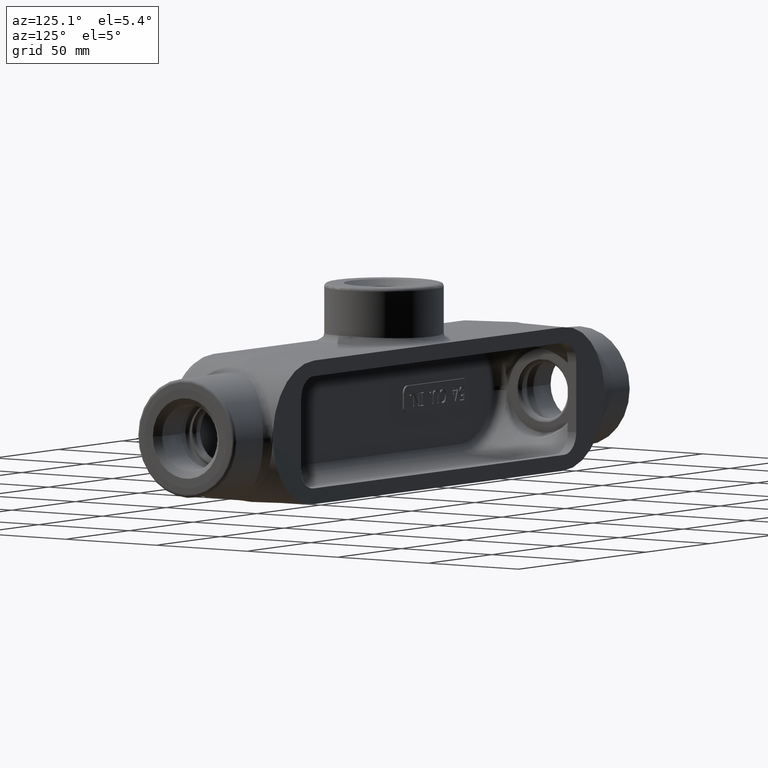
[diagram: clean part render]
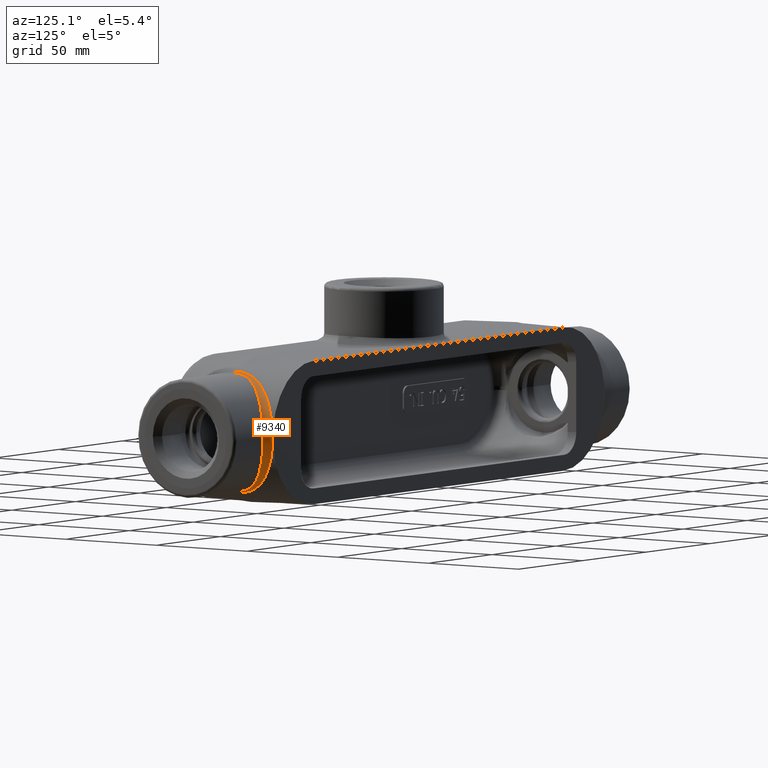
[diagram: same view with one face highlighted and labeled with its STEP entity id]
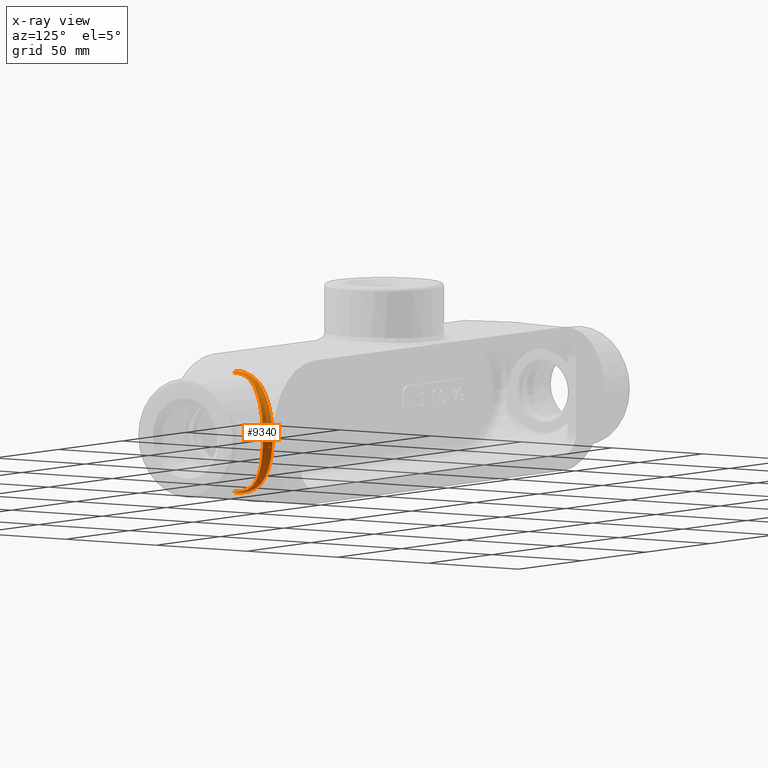
[diagram: x-ray of the same camera — body ghosted, the highlighted face saturated]
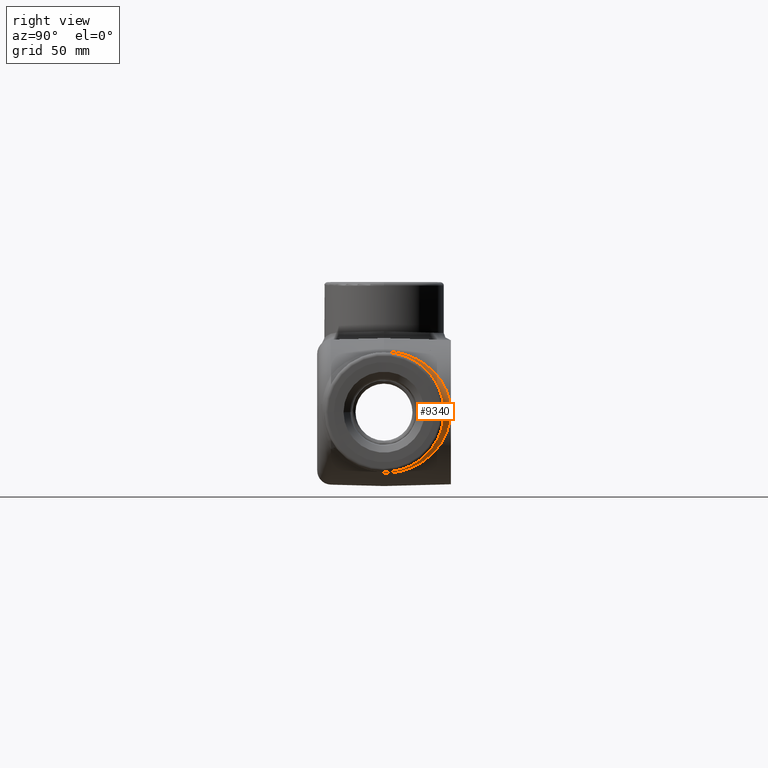
[diagram: same view with one face highlighted and labeled with its STEP entity id]
A machine part, auxiliary view. The second image highlights one B-rep face of the part: STEP entity #9340.
The next image is the same camera in x-ray: the body ghosted, the highlighted face saturated — about 0% of this face is hidden behind the body in this view.
A second angle (right view) of the same face is appended — the face is thin or edge-on in the first view.
In plain terms, the highlighted face is a freeform B-spline surface patch.
Its self-contained STEP definition (entity closure, byte-faithful):
#325=B_SPLINE_SURFACE_WITH_KNOTS('',3,3,((#22286,#22287,#22288,#22289,#22290,
#22291,#22292,#22293,#22294,#22295,#22296,#22297,#22298,#22299,#22300,#22301,
#22302),(#22303,#22304,#22305,#22306,#22307,#22308,#22309,#22310,#22311,
#22312,#22313,#22314,#22315,#22316,#22317,#22318,#22319),(#22320,#22321,
#22322,#22323,#22324,#22325,#22326,#22327,#22328,#22329,#22330,#22331,#22332,
#22333,#22334,#22335,#22336),(#22337,#22338,#22339,#22340,#22341,#22342,
#22343,#22344,#22345,#22346,#22347,#22348,#22349,#22350,#22351,#22352,#22353),
(#22354,#22355,#22356,#22357,#22358,#22359,#22360,#22361,#22362,#22363,
#22364,#22365,#22366,#22367,#22368,#22369,#22370)),.UNSPECIFIED.,.F.,.F.,
 .F.,(4,1,4),(4,1,1,1,1,1,1,1,1,1,1,1,1,1,4),(0.,0.571428571428571,1.),
(4.91144035863075,5.63003901359445,6.34863766855815,7.78583497848556,8.50443363344926,
9.22303228841296,10.1811638283646,10.6602295983404,11.1392953683162,12.0974269082678,
12.8160255632315,13.5346242181952,13.893923545677,14.2532228731589,14.9718215281226),
 .UNSPECIFIED.);
#643=B_SPLINE_CURVE_WITH_KNOTS('',3,(#22373,#22374,#22375,#22376,#22377,
#22378,#22379,#22380,#22381,#22382,#22383,#22384,#22385,#22386,#22387,#22388,
#22389,#22390,#22391,#22392,#22393,#22394,#22395,#22396,#22397,#22398,#22399,
#22400,#22401,#22402,#22403,#22404,#22405,#22406,#22407,#22408,#22409,#22410,
#22411,#22412,#22413,#22414,#22415,#22416,#22417,#22418,#22419,#22420,#22421,
#22422,#22423,#22424,#22425,#22426,#22427,#22428,#22429,#22430,#22431,#22432,
#22433,#22434,#22435,#22436,#22437,#22438,#22439,#22440,#22441,#22442,#22443,
#22444,#22445,#22446,#22447,#22448,#22449,#22450,#22451,#22452,#22453,#22454,
#22455,#22456,#22457,#22458,#22459,#22460,#22461,#22462,#22463,#22464,#22465,
#22466,#22467,#22468,#22469,#22470,#22471,#22472),.UNSPECIFIED.,.F.,.F.,
(4,3,3,3,3,3,3,3,3,3,3,3,3,3,3,3,3,3,3,3,3,3,3,3,3,3,3,3,3,3,3,3,3,4),(-14.9635022112557,
-14.7598637668904,-14.5281345367658,-14.4040880904884,-14.2532650213966,
-13.8939230288535,-13.8213016037004,-13.5346046607861,-12.8159496290064,
-12.3901447406549,-12.0974842157522,-11.5722955824265,-11.3580934727055,
-11.1393450079454,-10.6602168015292,-10.4770035824647,-10.1810925107511,
-9.94163094340918,-9.40625830436864,-9.22297838160275,-8.52516841423092,
-8.50438774417025,-8.00914278028481,-7.78577376647709,-7.4931171463387,
-6.9170994766474,-6.34837531008833,-6.06196028339803,-5.74062757790703,
-5.63014796530246,-5.39213054338923,-5.15594510944332,-5.00663451963438,
-4.91975967549742),.UNSPECIFIED.);
#644=B_SPLINE_CURVE_WITH_KNOTS('',3,(#22474,#22475,#22476,#22477,#22478,
#22479,#22480,#22481,#22482,#22483,#22484,#22485,#22486,#22487,#22488,#22489,
#22490,#22491,#22492),.UNSPECIFIED.,.F.,.F.,(4,3,3,3,3,3,4),(-0.190735192426463,
-0.189933353279227,-0.118684397155727,-0.108950317001185,-0.0953411124737189,
-0.0240575395208752,0.),.UNSPECIFIED.);
#645=B_SPLINE_CURVE_WITH_KNOTS('',3,(#22494,#22495,#22496,#22497,#22498,
#22499,#22500,#22501,#22502,#22503,#22504,#22505,#22506,#22507,#22508,#22509,
#22510),.UNSPECIFIED.,.F.,.F.,(4,1,1,1,1,1,1,1,1,1,1,1,1,1,4),(4.91144035863075,
5.63003901359445,6.34863766855815,7.78583497848556,8.50443363344926,9.22303228841296,
10.1811638283646,10.6602295983404,11.1392953683162,12.0974269082678,12.8160255632315,
13.5346242181952,13.893923545677,14.2532228731589,14.9718215281226),
 .UNSPECIFIED.);
#646=B_SPLINE_CURVE_WITH_KNOTS('',3,(#22511,#22512,#22513,#22514,#22515,
#22516,#22517,#22518,#22519,#22520,#22521,#22522,#22523,#22524,#22525,#22526,
#22527,#22528,#22529),.UNSPECIFIED.,.F.,.F.,(4,3,3,3,3,3,4),(-0.000801847573947484,
0.,0.0712506611153187,0.0809838872689921,0.0945932348027377,0.165877645217105,
0.189935349129489),.UNSPECIFIED.);
#1285=FACE_OUTER_BOUND('',#1825,.T.);
#1825=EDGE_LOOP('',(#7599,#7600,#7601,#7602));
#4264=VERTEX_POINT('',#22371);
#4265=VERTEX_POINT('',#22372);
#4266=VERTEX_POINT('',#22473);
#4267=VERTEX_POINT('',#22493);
#5453=EDGE_CURVE('',#4264,#4265,#643,.T.);
#5454=EDGE_CURVE('',#4266,#4265,#644,.T.);
#5455=EDGE_CURVE('',#4266,#4267,#645,.T.);
#5456=EDGE_CURVE('',#4267,#4264,#646,.T.);
#7599=ORIENTED_EDGE('',*,*,#5453,.T.);
#7600=ORIENTED_EDGE('',*,*,#5454,.F.);
#7601=ORIENTED_EDGE('',*,*,#5455,.T.);
#7602=ORIENTED_EDGE('',*,*,#5456,.T.);
#9340=ADVANCED_FACE('',(#1285),#325,.T.);
#22286=CARTESIAN_POINT('Ctrl Pts',(4.58334119712012,-0.0032721185384872,
1.08427759221372));
#22287=CARTESIAN_POINT('Ctrl Pts',(4.57922377865851,0.0909315114062012,
1.08410046361489));
#22288=CARTESIAN_POINT('Ctrl Pts',(4.60337864706897,0.280068744512831,1.06245188632261));
#22289=CARTESIAN_POINT('Ctrl Pts',(4.73564930314307,0.609223314244802,0.950173399179749));
#22290=CARTESIAN_POINT('Ctrl Pts',(4.90387640616855,0.872955728902057,0.75886330629082));
#22291=CARTESIAN_POINT('Ctrl Pts',(5.03759261708899,1.06549819512084,0.492444668960591));
#22292=CARTESIAN_POINT('Ctrl Pts',(5.1160727244688,1.17213008812285,0.231640562715458));
#22293=CARTESIAN_POINT('Ctrl Pts',(5.13360874109075,1.1957022290474,-0.029955059579667));
#22294=CARTESIAN_POINT('Ctrl Pts',(5.10379083368127,1.15556308573767,-0.255494439096398));
#22295=CARTESIAN_POINT('Ctrl Pts',(5.04813667510343,1.0794831733072,-0.46786142430569));
#22296=CARTESIAN_POINT('Ctrl Pts',(4.94992142499817,0.941521728045024,-0.674463206432715));
#22297=CARTESIAN_POINT('Ctrl Pts',(4.82022449334073,0.740537150380028,-0.85432323791113));
#22298=CARTESIAN_POINT('Ctrl Pts',(4.72173018423274,0.562877335960806,-0.957777068657714));
#22299=CARTESIAN_POINT('Ctrl Pts',(4.65319484087867,0.403574887591187,-1.0202614144062));
#22300=CARTESIAN_POINT('Ctrl Pts',(4.59716764432629,0.232583163191695,-1.06793727534058));
#22301=CARTESIAN_POINT('Ctrl Pts',(4.57922377865851,0.09093151140619,-1.08410046361489));
#22302=CARTESIAN_POINT('Ctrl Pts',(4.58334119712012,-0.00327211853849864,
-1.08427759221372));
#22303=CARTESIAN_POINT('Ctrl Pts',(4.59510988990981,-0.00272530221604395,
1.0762310999072));
#22304=CARTESIAN_POINT('Ctrl Pts',(4.59098411838693,0.0894730370830086,
1.07616706009206));
#22305=CARTESIAN_POINT('Ctrl Pts',(4.61532097536309,0.274570898965119,1.05410086571365));
#22306=CARTESIAN_POINT('Ctrl Pts',(4.74803152811279,0.596010402527673,0.939296123000301));
#22307=CARTESIAN_POINT('Ctrl Pts',(4.91462678832143,0.851647445648187,0.744635991574196));
#22308=CARTESIAN_POINT('Ctrl Pts',(5.04365983291766,1.03570213798442,0.479210528509358));
#22309=CARTESIAN_POINT('Ctrl Pts',(5.11776014745851,1.13624521544442,0.223595585569314));
#22310=CARTESIAN_POINT('Ctrl Pts',(5.13393272598284,1.15815831580099,-0.0287771464213223));
#22311=CARTESIAN_POINT('Ctrl Pts',(5.10615761323874,1.12062376020469,-0.247315892874572));
#22312=CARTESIAN_POINT('Ctrl Pts',(5.05366814508935,1.04891812712066,-0.454886366608536));
#22313=CARTESIAN_POINT('Ctrl Pts',(4.95926343900702,0.917399073994786,-0.660269182388275));
#22314=CARTESIAN_POINT('Ctrl Pts',(4.83182442451356,0.723302756460012,-0.841820255711729));
#22315=CARTESIAN_POINT('Ctrl Pts',(4.73387069246791,0.550586604223256,-0.947130727525529));
#22316=CARTESIAN_POINT('Ctrl Pts',(4.66529968076077,0.395178730588682,-1.01095587397582));
#22317=CARTESIAN_POINT('Ctrl Pts',(4.6090747892274,0.2281077220001,-1.05970590825306));
#22318=CARTESIAN_POINT('Ctrl Pts',(4.59098411838693,0.0894730370829976,
-1.07616706009206));
#22319=CARTESIAN_POINT('Ctrl Pts',(4.59510988990981,-0.00272530221605515,
-1.07623109990721));
#22320=CARTESIAN_POINT('Ctrl Pts',(4.61813377068113,-0.00165552887445591,
1.06571952406177));
#22321=CARTESIAN_POINT('Ctrl Pts',(4.61393329768114,0.0870325037932346,
1.06578392689874));
#22322=CARTESIAN_POINT('Ctrl Pts',(4.63902570127888,0.265071759325962,1.04348765051369));
#22323=CARTESIAN_POINT('Ctrl Pts',(4.77552260697045,0.573140949660549,0.926995816691051));
#22324=CARTESIAN_POINT('Ctrl Pts',(4.9459617012522,0.814817845507038,0.729833216144755));
#22325=CARTESIAN_POINT('Ctrl Pts',(5.07622370383082,0.984476423670471,0.465722233929959));
#22326=CARTESIAN_POINT('Ctrl Pts',(5.14996188320713,1.07483685691766,0.215429486248822));
#22327=CARTESIAN_POINT('Ctrl Pts',(5.16575877890403,1.09399009516173,-0.0275820383935726));
#22328=CARTESIAN_POINT('Ctrl Pts',(5.13841000444559,1.06079496476726,-0.238999692179567));
#22329=CARTESIAN_POINT('Ctrl Pts',(5.08622895929238,0.996410549456905,-0.441677013618925));
#22330=CARTESIAN_POINT('Ctrl Pts',(4.99117175237363,0.875796431830211,-0.645639444676168));
#22331=CARTESIAN_POINT('Ctrl Pts',(4.86125523403253,0.693500363387762,-0.828312665453686));
#22332=CARTESIAN_POINT('Ctrl Pts',(4.76087487323506,0.529315492491935,-0.934955044984162));
#22333=CARTESIAN_POINT('Ctrl Pts',(4.69042808348776,0.380656805221863,-0.999703652878842));
#22334=CARTESIAN_POINT('Ctrl Pts',(4.63259245553327,0.22039633229725,-1.04916386714478));
#22335=CARTESIAN_POINT('Ctrl Pts',(4.61393329768114,0.0870325037932242,
-1.06578392689874));
#22336=CARTESIAN_POINT('Ctrl Pts',(4.61813377068114,-0.0016555288744667,
-1.06571952406177));
#22337=CARTESIAN_POINT('Ctrl Pts',(4.64307568640707,-0.00049663664439485,
1.0625));
#22338=CARTESIAN_POINT('Ctrl Pts',(4.63875155647826,0.0850341487392943,
1.06253941781134));
#22339=CARTESIAN_POINT('Ctrl Pts',(4.66498216265521,0.256753267688694,1.04111114446536));
#22340=CARTESIAN_POINT('Ctrl Pts',(4.80776527867454,0.554669274139299,0.9287892197065));
#22341=CARTESIAN_POINT('Ctrl Pts',(4.98839711912291,0.790787648661295,0.737681476332227));
#22342=CARTESIAN_POINT('Ctrl Pts',(5.13049537399224,0.96005640225132,0.475690941172327));
#22343=CARTESIAN_POINT('Ctrl Pts',(5.21310744405009,1.05225116198606,0.222393678608506));
#22344=CARTESIAN_POINT('Ctrl Pts',(5.23136710166164,1.07229319758331,-0.0286554512517267));
#22345=CARTESIAN_POINT('Ctrl Pts',(5.20017528693533,1.03792656967267,-0.245815912073233));
#22346=CARTESIAN_POINT('Ctrl Pts',(5.14162382368836,0.972180130310128,-0.451643131234579));
#22347=CARTESIAN_POINT('Ctrl Pts',(5.03743451314077,0.851312944985409,-0.654479334943704));
#22348=CARTESIAN_POINT('Ctrl Pts',(4.89858707622401,0.672250529898216,-0.833076427009984));
#22349=CARTESIAN_POINT('Ctrl Pts',(4.79265471449333,0.51249736090546,-0.93640484431237));
#22350=CARTESIAN_POINT('Ctrl Pts',(4.71875534466294,0.36853363550689,-0.9989003275361));
#22351=CARTESIAN_POINT('Ctrl Pts',(4.65824411179576,0.213652011558726,-1.04655115288669));
#22352=CARTESIAN_POINT('Ctrl Pts',(4.63875155647826,0.0850341487392842,
-1.06253941781134));
#22353=CARTESIAN_POINT('Ctrl Pts',(4.64307568640707,-0.000496636644405267,
-1.0625));
#22354=CARTESIAN_POINT('Ctrl Pts',(4.65376440189719,-2.72262800668565E-15,
1.0625));
#22355=CARTESIAN_POINT('Ctrl Pts',(4.64938735820953,0.0842874583715605,
1.0625));
#22356=CARTESIAN_POINT('Ctrl Pts',(4.67610760863028,0.253515509045914,1.04163516299594));
#22357=CARTESIAN_POINT('Ctrl Pts',(4.82157953766826,0.548022229332412,0.932122026817487));
#22358=CARTESIAN_POINT('Ctrl Pts',(5.00658097008434,0.783993337183643,0.744813136044664));
#22359=CARTESIAN_POINT('Ctrl Pts',(5.15372977774369,0.956268175379392,0.483483436082087));
#22360=CARTESIAN_POINT('Ctrl Pts',(5.2401175213131,1.05167565859172,0.227476565827446));
#22361=CARTESIAN_POINT('Ctrl Pts',(5.25942702873574,1.07276652152421,-0.0294204217345036));
#22362=CARTESIAN_POINT('Ctrl Pts',(5.22659846996442,1.03685255119445,-0.250882154959526));
#22363=CARTESIAN_POINT('Ctrl Pts',(5.16533469962399,0.968781050598771,-0.459359054306877));
#22364=CARTESIAN_POINT('Ctrl Pts',(5.05724865264402,0.845341862732612,-0.662044796028023));
#22365=CARTESIAN_POINT('Ctrl Pts',(4.91458330556876,0.665513556400774,-0.838276222849233));
#22366=CARTESIAN_POINT('Ctrl Pts',(4.80627284751055,0.506554775078312,-0.939480001218933));
#22367=CARTESIAN_POINT('Ctrl Pts',(4.73089489630455,0.364021005484443,-1.00048343325776));
#22368=CARTESIAN_POINT('Ctrl Pts',(4.66923817950861,0.211028409969107,-1.04692312429613));
#22369=CARTESIAN_POINT('Ctrl Pts',(4.64938735820953,0.0842874583715507,
-1.0625));
#22370=CARTESIAN_POINT('Ctrl Pts',(4.6537644018972,-1.29930105388664E-14,
-1.0625));
#22371=CARTESIAN_POINT('',(4.58320420662205,6.49761919248649E-15,-1.08426732313855));
#22372=CARTESIAN_POINT('',(4.58320420662205,-6.840862835079E-14,1.08426732313855));
#22373=CARTESIAN_POINT('Ctrl Pts',(4.58320464154913,1.80512692016244E-8,
-1.08426718071065));
#22374=CARTESIAN_POINT('Ctrl Pts',(4.58214300271726,0.0267006462776859,
-1.08414749485883));
#22375=CARTESIAN_POINT('Ctrl Pts',(4.58236840117294,0.0534534421939352,
-1.08317677094739));
#22376=CARTESIAN_POINT('Ctrl Pts',(4.58376027006746,0.0800568799639217,
-1.08139855762818));
#22377=CARTESIAN_POINT('Ctrl Pts',(4.58534413950021,0.110330113352251,-1.07937504971569));
#22378=CARTESIAN_POINT('Ctrl Pts',(4.58843674574488,0.140419355199532,-1.07630674283576));
#22379=CARTESIAN_POINT('Ctrl Pts',(4.5928506545047,0.170109672765153,-1.07226227086282));
#22380=CARTESIAN_POINT('Ctrl Pts',(4.59521345394763,0.186003129023912,-1.07009723378467));
#22381=CARTESIAN_POINT('Ctrl Pts',(4.59795474549663,0.201783062809426,-1.06765256754693));
#22382=CARTESIAN_POINT('Ctrl Pts',(4.60104901740327,0.217430148413235,-1.06493608991532));
#22383=CARTESIAN_POINT('Ctrl Pts',(4.6048112177691,0.236454808481544,-1.06163323436553));
#22384=CARTESIAN_POINT('Ctrl Pts',(4.60909455250084,0.25527798733311,-1.057929193345));
#22385=CARTESIAN_POINT('Ctrl Pts',(4.61384961365844,0.273841332237581,-1.05384123150404));
#22386=CARTESIAN_POINT('Ctrl Pts',(4.62517873699034,0.318069243699701,-1.044101498967));
#22387=CARTESIAN_POINT('Ctrl Pts',(4.63918613769216,0.360821907653218,-1.03218206353583));
#22388=CARTESIAN_POINT('Ctrl Pts',(4.65475835922888,0.402113728087453,-1.01841035380444));
#22389=CARTESIAN_POINT('Ctrl Pts',(4.65790543623147,0.410458622114117,-1.01562715226317));
#22390=CARTESIAN_POINT('Ctrl Pts',(4.66111640245206,0.418743863036565,-1.01276831626751));
#22391=CARTESIAN_POINT('Ctrl Pts',(4.66438536829091,0.426969598251432,-1.00983521179911));
#22392=CARTESIAN_POINT('Ctrl Pts',(4.67729068528949,0.45944339141029,-0.998255817941653));
#22393=CARTESIAN_POINT('Ctrl Pts',(4.69109914017338,0.490987930113965,-0.985519651708176));
#22394=CARTESIAN_POINT('Ctrl Pts',(4.70545137860355,0.521620487290173,-0.971708243462108));
#22395=CARTESIAN_POINT('Ctrl Pts',(4.74142772442817,0.598406242754412,-0.937087581200745));
#22396=CARTESIAN_POINT('Ctrl Pts',(4.780820952728,0.669462767946906,-0.895711974195401));
#22397=CARTESIAN_POINT('Ctrl Pts',(4.81998104488349,0.735151546460561,-0.848034047678604));
#22398=CARTESIAN_POINT('Ctrl Pts',(4.84318349658944,0.774072310615905,-0.819784757992233));
#22399=CARTESIAN_POINT('Ctrl Pts',(4.86630415918059,0.811108420449382,-0.789322650508796));
#22400=CARTESIAN_POINT('Ctrl Pts',(4.88884557698758,0.846105774295076,-0.756619794930118));
#22401=CARTESIAN_POINT('Ctrl Pts',(4.90433854888131,0.870159852176478,-0.734142751708449));
#22402=CARTESIAN_POINT('Ctrl Pts',(4.9195455701964,0.893231947328137,-0.710625109428242));
#22403=CARTESIAN_POINT('Ctrl Pts',(4.93431057480739,0.915282575547273,-0.686054535741962));
#22404=CARTESIAN_POINT('Ctrl Pts',(4.9608068458548,0.954853130210328,-0.641961858676563));
#22405=CARTESIAN_POINT('Ctrl Pts',(4.98588090950552,0.991136166018571,-0.594480147796517));
#22406=CARTESIAN_POINT('Ctrl Pts',(5.00859700321096,1.02341374951253,-0.543847337995525));
#22407=CARTESIAN_POINT('Ctrl Pts',(5.01786193182434,1.03657840320527,-0.52319636805394));
#22408=CARTESIAN_POINT('Ctrl Pts',(5.02673441460608,1.04907637925482,-0.50202087038038));
#22409=CARTESIAN_POINT('Ctrl Pts',(5.03514976913914,1.06085710663227,-0.480335615585944));
#22410=CARTESIAN_POINT('Ctrl Pts',(5.043743736243,1.07288787528778,-0.458190099837316));
#22411=CARTESIAN_POINT('Ctrl Pts',(5.05185445823665,1.08415979363251,-0.43552961345739));
#22412=CARTESIAN_POINT('Ctrl Pts',(5.05941356252244,1.09461910549861,-0.412374566663897));
#22413=CARTESIAN_POINT('Ctrl Pts',(5.07597038765276,1.11752830095399,-0.361657703110972));
#22414=CARTESIAN_POINT('Ctrl Pts',(5.08988124575164,1.13653961306439,-0.308568408624995));
#22415=CARTESIAN_POINT('Ctrl Pts',(5.10056309308316,1.15104572744624,-0.253842253627399));
#22416=CARTESIAN_POINT('Ctrl Pts',(5.10464771095569,1.15659270188111,-0.232915589553228));
#22417=CARTESIAN_POINT('Ctrl Pts',(5.10826011861739,1.16148082950089,-0.211749556587692));
#22418=CARTESIAN_POINT('Ctrl Pts',(5.11136960845897,1.16567664548616,-0.190402961444874));
#22419=CARTESIAN_POINT('Ctrl Pts',(5.11639180323403,1.172453385785,-0.155925679301141));
#22420=CARTESIAN_POINT('Ctrl Pts',(5.12010467646268,1.17744790663361,-0.120952985850737));
#22421=CARTESIAN_POINT('Ctrl Pts',(5.12237254800698,1.18050854732395,-0.0857521480973296));
#22422=CARTESIAN_POINT('Ctrl Pts',(5.1242077888156,1.18298532459536,-0.0572664015811026));
#22423=CARTESIAN_POINT('Ctrl Pts',(5.1250968053297,1.18419575971304,-0.0286313707455423));
#22424=CARTESIAN_POINT('Ctrl Pts',(5.12506536506363,1.18416876386877,-2.06812236994232E-8));
#22425=CARTESIAN_POINT('Ctrl Pts',(5.12499507295621,1.18410840831131,0.0640120945545403));
#22426=CARTESIAN_POINT('Ctrl Pts',(5.12032939606722,1.17780891066995,0.127987961376632));
#22427=CARTESIAN_POINT('Ctrl Pts',(5.11135990297076,1.16562078321361,0.190391519875162));
#22428=CARTESIAN_POINT('Ctrl Pts',(5.10828927910602,1.16144828933559,0.211754806953906));
#22429=CARTESIAN_POINT('Ctrl Pts',(5.10471354817503,1.15659052381838,0.232935281821926));
#22430=CARTESIAN_POINT('Ctrl Pts',(5.10064408879458,1.15106169556209,0.253867812206252));
#22431=CARTESIAN_POINT('Ctrl Pts',(5.08515025141925,1.13001153683817,0.333565185077551));
#22432=CARTESIAN_POINT('Ctrl Pts',(5.06249741050572,1.09923111618551,0.409666313138402));
#22433=CARTESIAN_POINT('Ctrl Pts',(5.0351152298447,1.06084439764658,0.480315875373694));
#22434=CARTESIAN_POINT('Ctrl Pts',(5.03429979285116,1.05970124726185,0.482419808122422));
#22435=CARTESIAN_POINT('Ctrl Pts',(5.03348014518241,1.0585511989399,0.484518964146276));
#22436=CARTESIAN_POINT('Ctrl Pts',(5.03265635181182,1.05739431191133,0.486613290977817));
#22437=CARTESIAN_POINT('Ctrl Pts',(5.01302370681657,1.02982337829793,0.536525291554427));
#22438=CARTESIAN_POINT('Ctrl Pts',(4.99103570620754,0.998366872702571,0.583691418432376));
#22439=CARTESIAN_POINT('Ctrl Pts',(4.96738909035722,0.963794726176908,0.627924830807146));
#22440=CARTESIAN_POINT('Ctrl Pts',(4.9567238203443,0.948201743233543,0.64787530869184));
#22441=CARTESIAN_POINT('Ctrl Pts',(4.9457165724119,0.931968259446786,0.667238280386408));
#22442=CARTESIAN_POINT('Ctrl Pts',(4.93443296766155,0.915150254820948,0.685994613619311));
#22443=CARTESIAN_POINT('Ctrl Pts',(4.91964926255885,0.893115415219127,0.710569038677462));
#22444=CARTESIAN_POINT('Ctrl Pts',(4.90439112566927,0.870076916792728,0.734101918734828));
#22445=CARTESIAN_POINT('Ctrl Pts',(4.88886778881386,0.84603989189811,0.756570763391293));
#22446=CARTESIAN_POINT('Ctrl Pts',(4.85831417852116,0.798729323425196,0.800794781059344));
#22447=CARTESIAN_POINT('Ctrl Pts',(4.82666326604928,0.74782735908361,0.840981409821681));
#22448=CARTESIAN_POINT('Ctrl Pts',(4.79543298630478,0.693328718473406,0.877030695374807));
#22449=CARTESIAN_POINT('Ctrl Pts',(4.76459814259483,0.639520136566097,0.912623526914575));
#22450=CARTESIAN_POINT('Ctrl Pts',(4.73417407714705,0.582205669075813,0.944181810222875));
#22451=CARTESIAN_POINT('Ctrl Pts',(4.70563759740855,0.521427121973871,0.971606307345449));
#22452=CARTESIAN_POINT('Ctrl Pts',(4.69126634841557,0.490818453986853,0.985417551068137));
#22453=CARTESIAN_POINT('Ctrl Pts',(4.67737391662459,0.459331945398437,0.998180506152187));
#22454=CARTESIAN_POINT('Ctrl Pts',(4.66443909951363,0.426918429840989,1.00976385270368));
#22455=CARTESIAN_POINT('Ctrl Pts',(4.64992736168575,0.390553289474901,1.02275935831329));
#22456=CARTESIAN_POINT('Ctrl Pts',(4.63656139308654,0.353023486352573,1.03431686457804));
#22457=CARTESIAN_POINT('Ctrl Pts',(4.62506745529915,0.314291163710277,1.04420627805918));
#22458=CARTESIAN_POINT('Ctrl Pts',(4.6211156453142,0.300974336858628,1.0476064254815));
#22459=CARTESIAN_POINT('Ctrl Pts',(4.61738498493441,0.287515699391745,1.05080962838584));
#22460=CARTESIAN_POINT('Ctrl Pts',(4.61390436812725,0.273914796932566,1.05380730122577));
#22461=CARTESIAN_POINT('Ctrl Pts',(4.60640572272492,0.244612994883222,1.06026549151338));
#22462=CARTESIAN_POINT('Ctrl Pts',(4.60006839909586,0.214650351817679,1.06576917923453));
#22463=CARTESIAN_POINT('Ctrl Pts',(4.59510811165514,0.184291794211032,1.07023914979735));
#22464=CARTESIAN_POINT('Ctrl Pts',(4.59018600287727,0.154166902324287,1.07467471560013));
#22465=CARTESIAN_POINT('Ctrl Pts',(4.58659464336187,0.123594550151355,1.0781119481005));
#22466=CARTESIAN_POINT('Ctrl Pts',(4.58454124848472,0.0927985615221073,
1.08047546023885));
#22467=CARTESIAN_POINT('Ctrl Pts',(4.58324314302963,0.0733300991823194,
1.08196961415639));
#22468=CARTESIAN_POINT('Ctrl Pts',(4.58255982630558,0.0537687183423045,
1.08303467818419));
#22469=CARTESIAN_POINT('Ctrl Pts',(4.58254423329611,0.0341856401905734,
1.08365087733839));
#22470=CARTESIAN_POINT('Ctrl Pts',(4.58253516066256,0.0227914258596903,
1.08400940653278));
#22471=CARTESIAN_POINT('Ctrl Pts',(4.58275211006068,0.0113908726711998,
1.0842159694939));
#22472=CARTESIAN_POINT('Ctrl Pts',(4.58320468928743,2.00219275893997E-8,
1.08426716151409));
#22473=CARTESIAN_POINT('',(4.65376440189719,-2.78989976352963E-15,1.0625));
#22474=CARTESIAN_POINT('Ctrl Pts',(4.65376440189719,-2.7226484955456E-15,
1.0625));
#22475=CARTESIAN_POINT('Ctrl Pts',(4.65365917255681,-2.73333021163249E-15,
1.0625));
#22476=CARTESIAN_POINT('Ctrl Pts',(4.65355394319675,-5.66142407538612E-12,
1.06250013312186));
#22477=CARTESIAN_POINT('Ctrl Pts',(4.65344871406922,-1.42549461817909E-11,
1.06250039932777));
#22478=CARTESIAN_POINT('Ctrl Pts',(4.64409837801191,-7.77841269930123E-10,
1.06252405356536));
#22479=CARTESIAN_POINT('Ctrl Pts',(4.63478857385947,-2.51105038179707E-7,
1.06359401965148));
#22480=CARTESIAN_POINT('Ctrl Pts',(4.62569481914813,-1.39579737260795E-7,
1.06568434558849));
#22481=CARTESIAN_POINT('Ctrl Pts',(4.62445242428255,-1.24343075876979E-7,
1.06596992731947));
#22482=CARTESIAN_POINT('Ctrl Pts',(4.62321407120037,-1.06717531562816E-7,
1.06627463315072));
#22483=CARTESIAN_POINT('Ctrl Pts',(4.62198022252178,-8.89466942645939E-8,
1.0665984710911));
#22484=CARTESIAN_POINT('Ctrl Pts',(4.62025518032402,-6.41013102551251E-8,
1.06705122848517));
#22485=CARTESIAN_POINT('Ctrl Pts',(4.61853894136672,-3.88598433696582E-8,
1.06754138069531));
#22486=CARTESIAN_POINT('Ctrl Pts',(4.61683264855692,-2.88562417123054E-8,
1.06806852676693));
#22487=CARTESIAN_POINT('Ctrl Pts',(4.60789526740872,2.3541565012081E-8,
1.07082966209834));
#22488=CARTESIAN_POINT('Ctrl Pts',(4.5993035305878,-1.04341539606854E-7,
1.07457884964849));
#22489=CARTESIAN_POINT('Ctrl Pts',(4.59121497291736,-1.3151916554709E-7,
1.07923866415874));
#22490=CARTESIAN_POINT('Ctrl Pts',(4.5884851603145,-1.40691360248571E-7,
1.08081130799654));
#22491=CARTESIAN_POINT('Ctrl Pts',(4.5858128222175,-1.47338653248133E-7,
1.08248807898544));
#22492=CARTESIAN_POINT('Ctrl Pts',(4.58320469628832,-1.56181121759372E-7,
1.08426716230595));
#22493=CARTESIAN_POINT('',(4.6537644018972,-1.23971261952484E-14,-1.0625));
#22494=CARTESIAN_POINT('Ctrl Pts',(4.65376440189719,-2.72262800668565E-15,
1.0625));
#22495=CARTESIAN_POINT('Ctrl Pts',(4.64938735820953,0.0842874583715605,
1.0625));
#22496=CARTESIAN_POINT('Ctrl Pts',(4.67610760863028,0.253515509045914,1.04163516299594));
#22497=CARTESIAN_POINT('Ctrl Pts',(4.82157953766826,0.548022229332412,0.932122026817487));
#22498=CARTESIAN_POINT('Ctrl Pts',(5.00658097008434,0.783993337183643,0.744813136044664));
#22499=CARTESIAN_POINT('Ctrl Pts',(5.15372977774369,0.956268175379392,0.483483436082087));
#22500=CARTESIAN_POINT('Ctrl Pts',(5.2401175213131,1.05167565859172,0.227476565827446));
#22501=CARTESIAN_POINT('Ctrl Pts',(5.25942702873574,1.07276652152421,-0.0294204217345036));
#22502=CARTESIAN_POINT('Ctrl Pts',(5.22659846996442,1.03685255119445,-0.250882154959526));
#22503=CARTESIAN_POINT('Ctrl Pts',(5.16533469962399,0.968781050598771,-0.459359054306877));
#22504=CARTESIAN_POINT('Ctrl Pts',(5.05724865264402,0.845341862732612,-0.662044796028023));
#22505=CARTESIAN_POINT('Ctrl Pts',(4.91458330556876,0.665513556400774,-0.838276222849233));
#22506=CARTESIAN_POINT('Ctrl Pts',(4.80627284751055,0.506554775078312,-0.939480001218933));
#22507=CARTESIAN_POINT('Ctrl Pts',(4.73089489630455,0.364021005484443,-1.00048343325776));
#22508=CARTESIAN_POINT('Ctrl Pts',(4.66923817950861,0.211028409969107,-1.04692312429613));
#22509=CARTESIAN_POINT('Ctrl Pts',(4.64938735820953,0.0842874583715507,
-1.0625));
#22510=CARTESIAN_POINT('Ctrl Pts',(4.6537644018972,-1.29930105388664E-14,
-1.0625));
#22511=CARTESIAN_POINT('Ctrl Pts',(4.6537644018972,-1.30004514098392E-14,
-1.0625));
#22512=CARTESIAN_POINT('Ctrl Pts',(4.65365917255678,-1.30057102559661E-14,
-1.0625));
#22513=CARTESIAN_POINT('Ctrl Pts',(4.65355394319654,-5.18085320927938E-12,
-1.06250013312202));
#22514=CARTESIAN_POINT('Ctrl Pts',(4.65344871406813,-1.47999854559211E-11,
-1.06250039932826));
#22515=CARTESIAN_POINT('Ctrl Pts',(4.64409825244504,-8.69518433879731E-10,
-1.06252405391192));
#22516=CARTESIAN_POINT('Ctrl Pts',(4.63478832058219,-2.54215876120255E-7,
-1.06359404981389));
#22517=CARTESIAN_POINT('Ctrl Pts',(4.62569444478325,-1.47892955821845E-7,
-1.06568443424259));
#22518=CARTESIAN_POINT('Ctrl Pts',(4.62445217210284,-1.3336866913616E-7,
-1.06596999207565));
#22519=CARTESIAN_POINT('Ctrl Pts',(4.62321394042534,-1.16500071469364E-7,
-1.06627467027377));
#22520=CARTESIAN_POINT('Ctrl Pts',(4.62198021223646,-9.95307812834412E-8,
-1.06659847683989));
#22521=CARTESIAN_POINT('Ctrl Pts',(4.62025516902677,-7.58037083146088E-8,
-1.06705123484864));
#22522=CARTESIAN_POINT('Ctrl Pts',(4.61853892899872,-5.17677441701532E-8,
-1.06754138770765));
#22523=CARTESIAN_POINT('Ctrl Pts',(4.61683263506217,-4.30581422194726E-8,
-1.06806853444908));
#22524=CARTESIAN_POINT('Ctrl Pts',(4.60789523692762,2.56188746028876E-9,
-1.07082967671333));
#22525=CARTESIAN_POINT('Ctrl Pts',(4.59930348258046,-1.34558327072539E-7,
-1.07457887419816));
#22526=CARTESIAN_POINT('Ctrl Pts',(4.591214907032,-1.72994317112801E-7,
-1.0792386991475));
#22527=CARTESIAN_POINT('Ctrl Pts',(4.58848510181251,-1.85966040699949E-7,
-1.08081133877884));
#22528=CARTESIAN_POINT('Ctrl Pts',(4.58581277048572,-1.96630661767773E-7,
-1.08248810459787));
#22529=CARTESIAN_POINT('Ctrl Pts',(4.58320465060257,-2.09645474147369E-7,
-1.08426718173128));